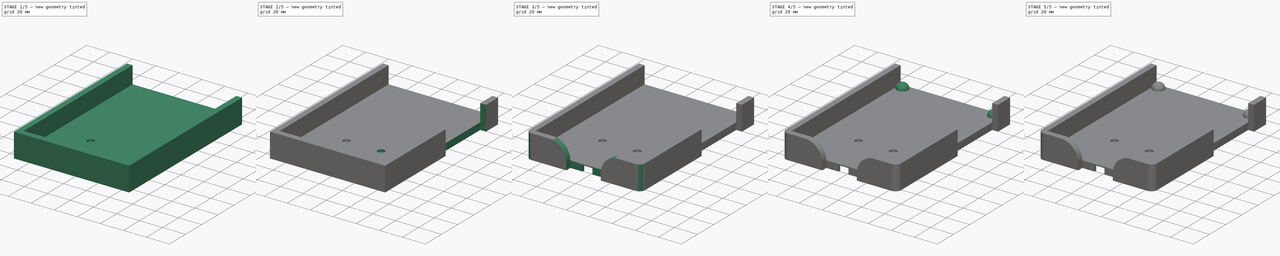
[diagram: build sequence overview — one tinted view per stage of 5, left to right]
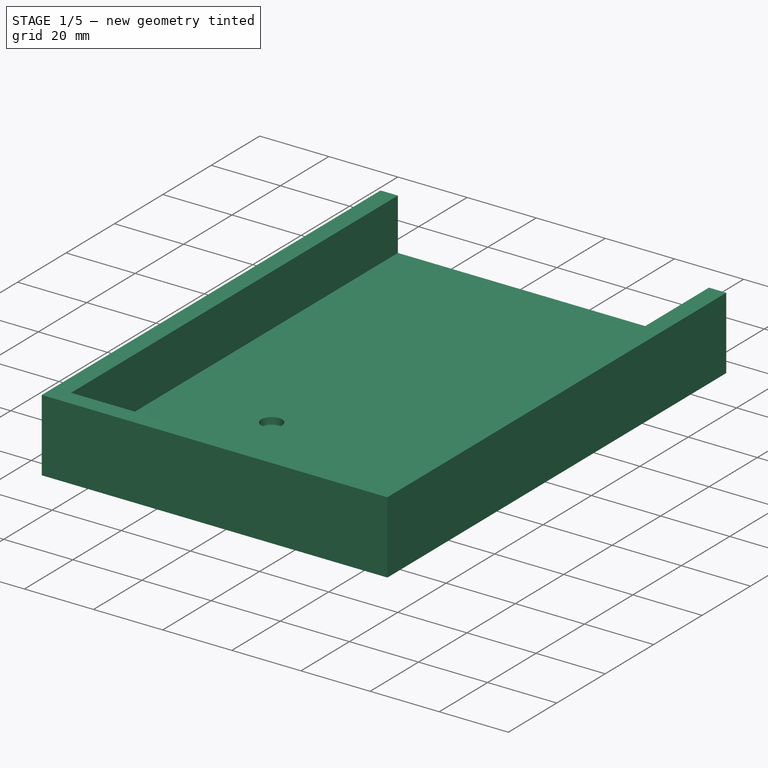
[diagram: stage 1 of 5 — iso view after this stage's code; geometry added in this stage tinted green]
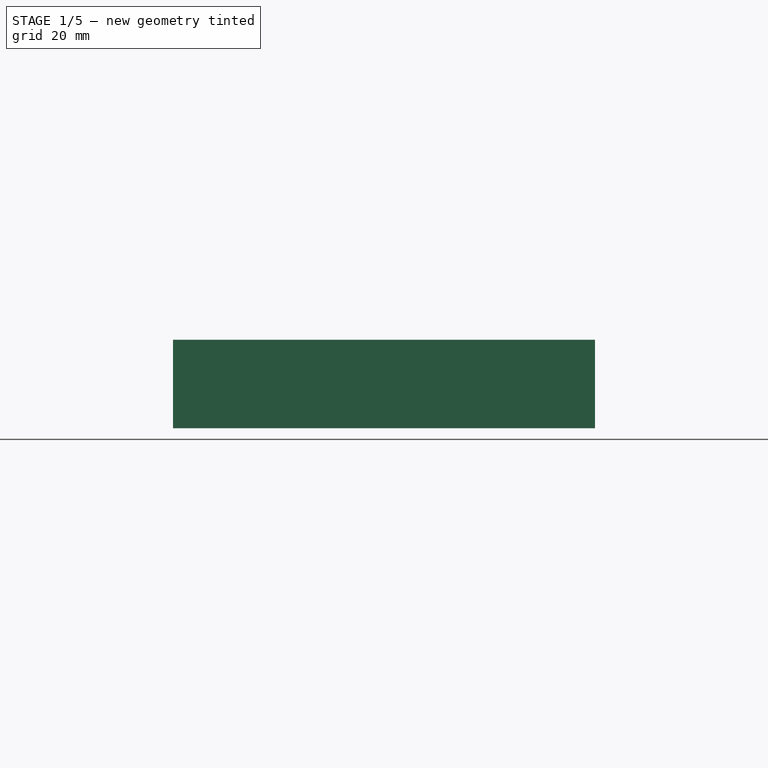
[diagram: stage 1 of 5 — front view after this stage's code; geometry added in this stage tinted green]
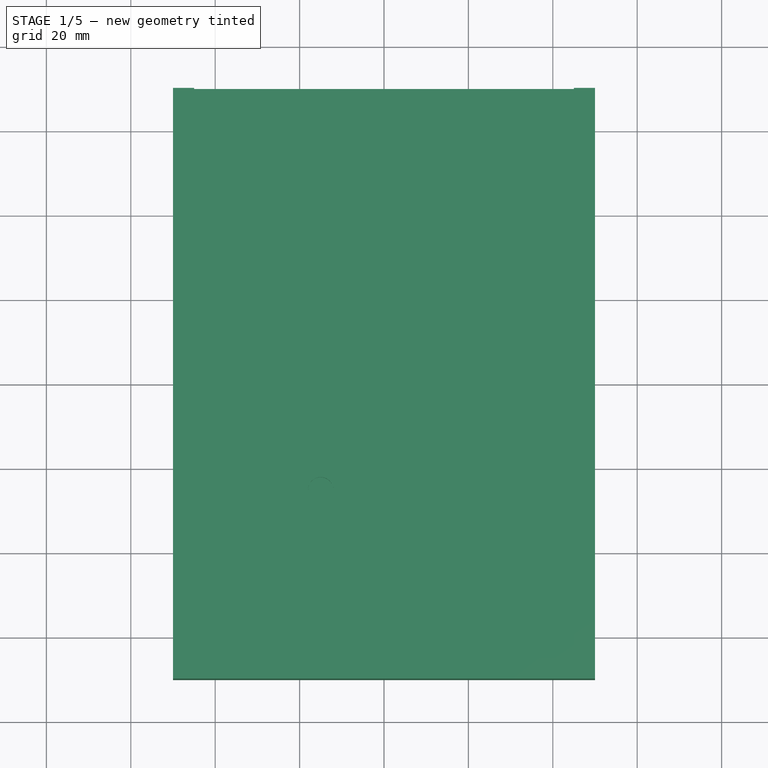
[diagram: stage 1 of 5 — top view after this stage's code; geometry added in this stage tinted green]
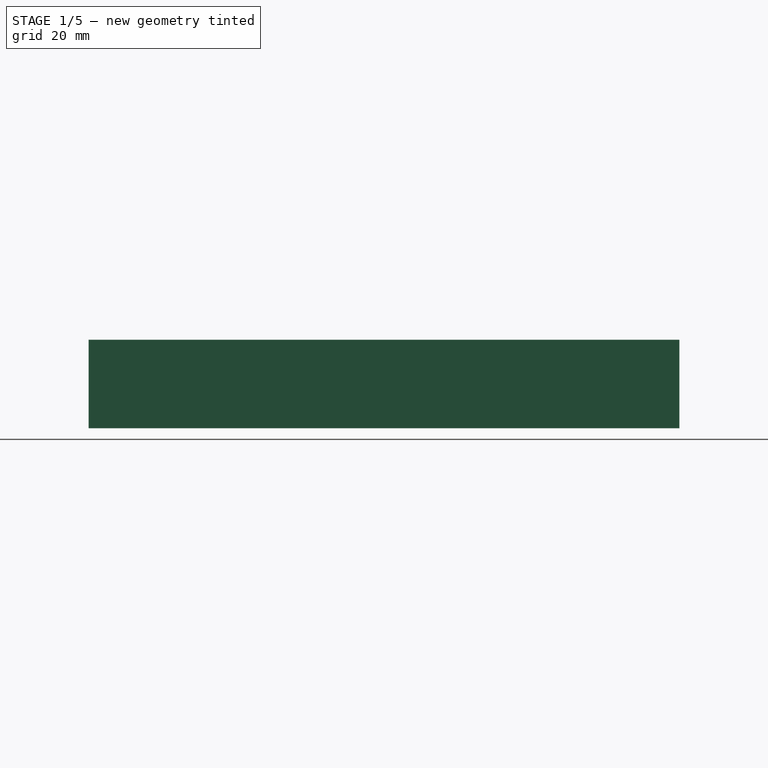
[diagram: stage 1 of 5 — right view after this stage's code; geometry added in this stage tinted green]
FCSTD DOCUMENT  (FreeCAD 0.14R3702 (Git))
Label: Holder_v3
License: CC-BY 3.0
LicenseURL: http://creativecommons.org/licenses/by/3.0/
objects: Sketcher::SketchObject×10, PartDesign::Pocket×6, PartDesign::Fillet×4, PartDesign::Pad×3, PartDesign::Mirrored×3
note: 35 computed .brp shape members not serialized (recipe doc carries the construction recipe); baked Part::Feature solids carry a one-line shape summary decoded from their .brp

FEATURE [Sketcher::SketchObject] Sketch
  sketch-geometry (4):
    g0: LineSegment StartX=-50 StartY=70 StartZ=0 EndX=50 EndY=70 EndZ=0
    g1: LineSegment StartX=50 StartY=70 StartZ=0 EndX=50 EndY=-70 EndZ=0
    g2: LineSegment StartX=50 StartY=-70 StartZ=0 EndX=-50 EndY=-70 EndZ=0
    g3: LineSegment StartX=-50 StartY=-70 StartZ=0 EndX=-50 EndY=70 EndZ=0
  constraints (11):
    c: Coincident(g0,g1)
    c: Coincident(g1,g2)
    c: Coincident(g2,g3)
    c: Coincident(g3,g0)
    c: Horizontal(g0)
    c: Horizontal(g2)
    c: Vertical(g1)
    c: Vertical(g3)
    c: DistanceX(g2) = -100
    c: DistanceY(g1) = -140
    c: Symmetric(g2,g0,g-1)
FEATURE [PartDesign::Pad] Pad
  Length = 21
  Length2 = 26.5
  Sketch = -> Sketch
  Type = 0
FEATURE [Sketcher::SketchObject] Sketch001
  ExternalGeometry = -> [Pad]
  Placement = pos=(0,0,21) rot=(0,0,1;0rad)
  Support = -> Pad [Face6]
  sketch-geometry (4):
    g0: LineSegment StartX=-45 StartY=70 StartZ=0 EndX=45 EndY=70 EndZ=0
    g1: LineSegment StartX=45 StartY=70 StartZ=0 EndX=45 EndY=-65 EndZ=0
    g2: LineSegment StartX=45 StartY=-65 StartZ=0 EndX=-45 EndY=-65 EndZ=0
    g3: LineSegment StartX=-45 StartY=-65 StartZ=0 EndX=-45 EndY=70 EndZ=0
  constraints (12):
    c: Coincident(g0,g1)
    c: Coincident(g1,g2)
    c: Coincident(g2,g3)
    c: Coincident(g3,g0)
    c: Horizontal(g0)
    c: Horizontal(g2)
    c: Vertical(g1)
    c: Vertical(g3)
    c: DistanceY(g0,g-3) = 0
    c: DistanceX(g0,g-3) = 5
    c: DistanceX(g-3,g0) = 5
    c: DistanceY(g1) = -135
FEATURE [PartDesign::Pocket] Pocket
  Length = 15
  Sketch = -> Sketch001
  Type = 0
FEATURE [Sketcher::SketchObject] Sketch002
  Placement = pos=(0,0,0) rot=(1,0,0;3.14159rad)
  Support = -> Pocket [Face2]
FEATURE [Sketcher::SketchObject] Sketch003
  Placement = pos=(0,0,6) rot=(0,0,1;0rad)
  Support = -> Pocket [Face6]
  sketch-geometry (1):
    g0: Circle CenterX=-15 CenterY=-25 CenterZ=0 NormalX=0 NormalY=0 NormalZ=1 Radius=3
  constraints (2):
    c: Radius(g0) = 3
    c: DistanceX(g-2,g0) = -15
FEATURE [PartDesign::Pocket] Pocket001
  Length = 2
  Sketch = -> Sketch003
  Type = 0
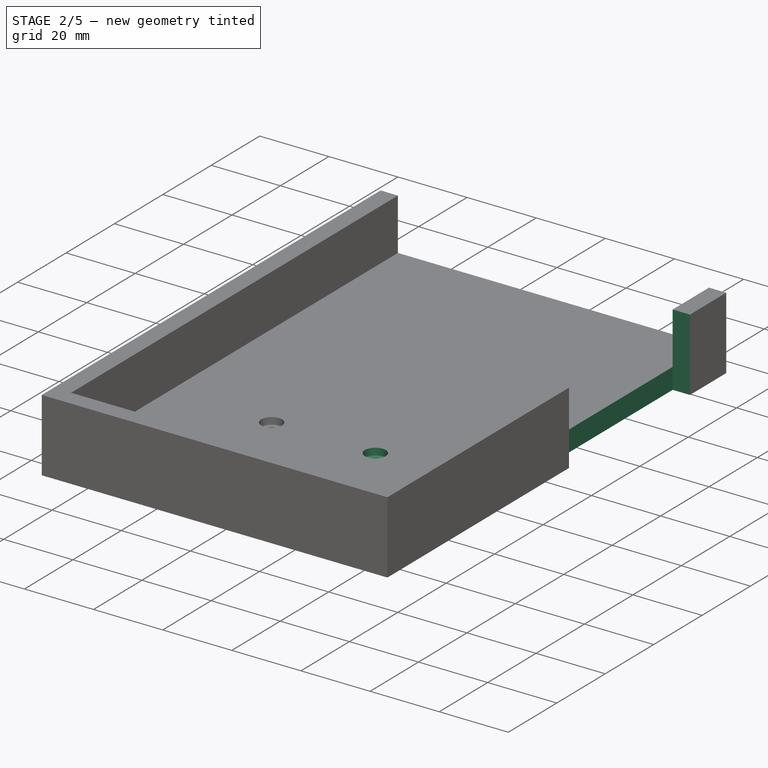
[diagram: stage 2 of 5 — iso view after this stage's code; geometry added in this stage tinted green]
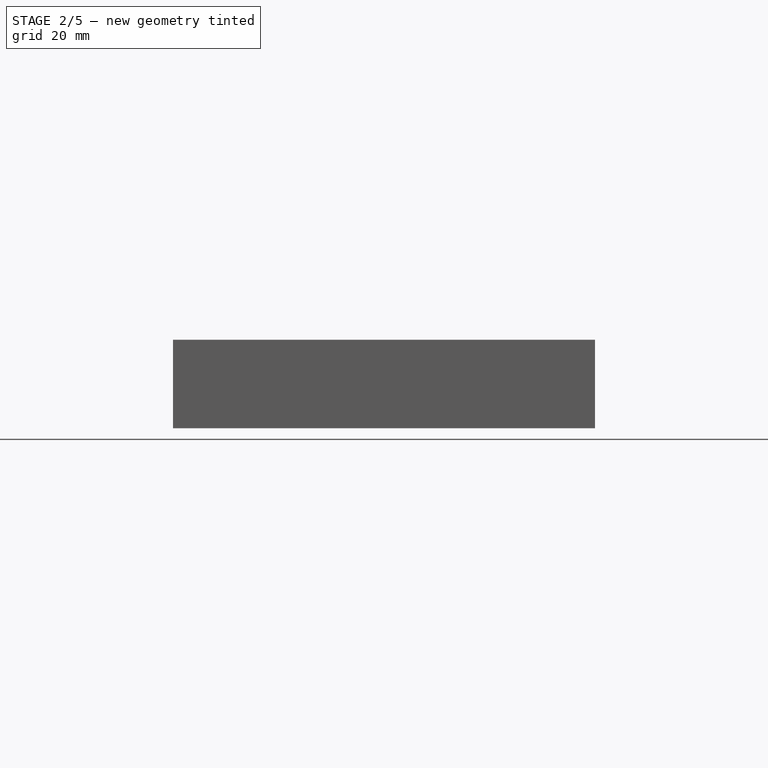
[diagram: stage 2 of 5 — front view after this stage's code; geometry added in this stage tinted green]
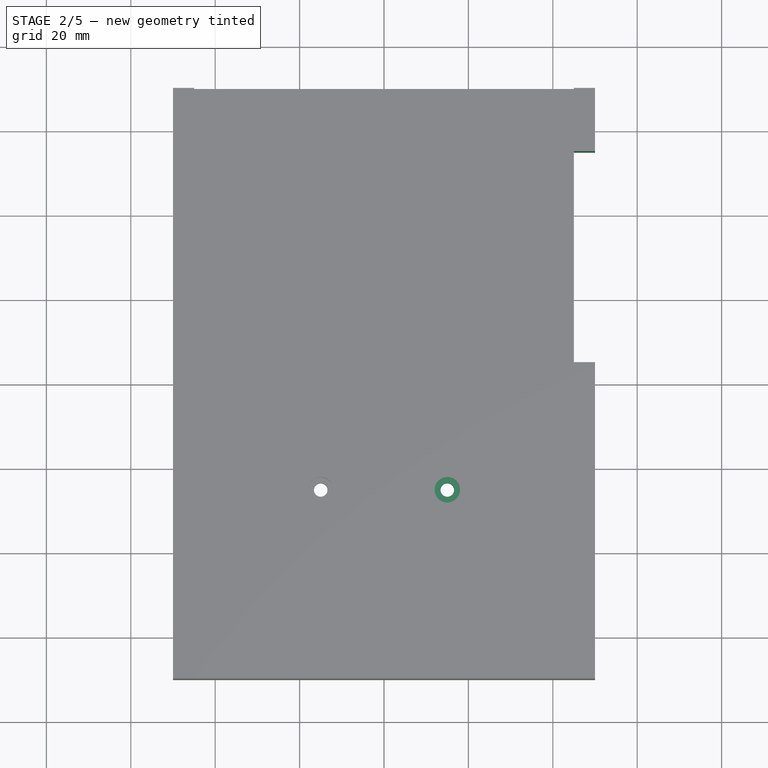
[diagram: stage 2 of 5 — top view after this stage's code; geometry added in this stage tinted green]
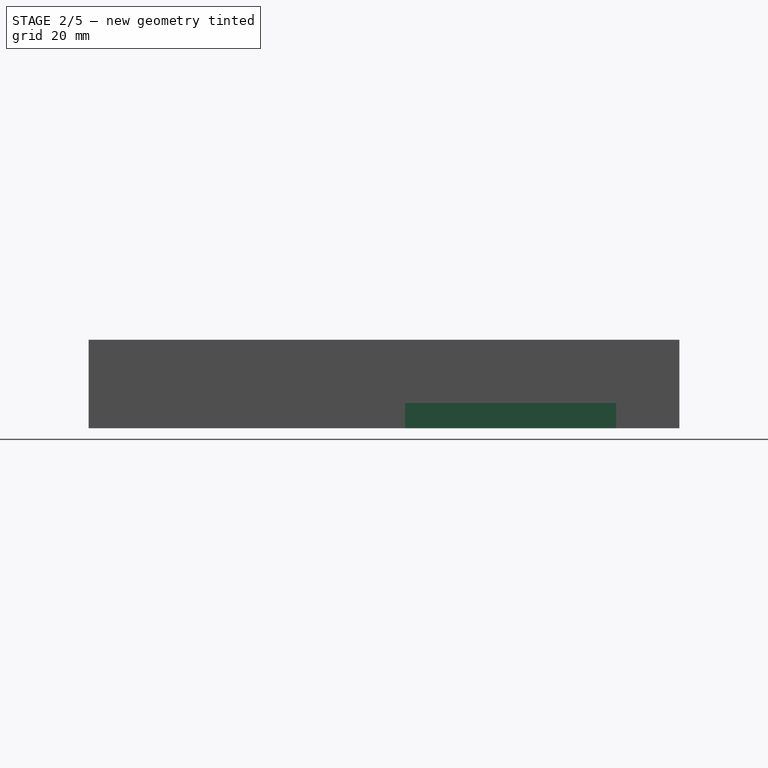
[diagram: stage 2 of 5 — right view after this stage's code; geometry added in this stage tinted green]
FEATURE [Sketcher::SketchObject] Sketch004
  Placement = pos=(0,0,4) rot=(0,0,1;0rad)
  Support = -> Pocket001 [Face12]
  sketch-geometry (1):
    g0: Circle CenterX=-15 CenterY=-25 CenterZ=0 NormalX=0 NormalY=0 NormalZ=1 Radius=1.6
  constraints (1):
    c: Radius(g0) = 1.6
FEATURE [PartDesign::Pocket] Pocket002
  Length = 5
  Sketch = -> Sketch004
  Type = 1
FEATURE [PartDesign::Mirrored] Mirrored
  MirrorPlane = -> Sketch004 [V_Axis]
  Originals = -> [Pocket002,Pocket001]
FEATURE [Sketcher::SketchObject] Sketch005
  ExternalGeometry = -> [Mirrored]
  Placement = pos=(0,0,21) rot=(0,0,1;0rad)
  Support = -> Mirrored [Face4]
  sketch-geometry (4):
    g0: LineSegment StartX=45 StartY=55 StartZ=0 EndX=50 EndY=55 EndZ=0
    g1: LineSegment StartX=50 StartY=55 StartZ=0 EndX=50 EndY=5 EndZ=0
    g2: LineSegment StartX=50 StartY=5 StartZ=0 EndX=45 EndY=5 EndZ=0
    g3: LineSegment StartX=45 StartY=5 StartZ=0 EndX=45 EndY=55 EndZ=0
  constraints (12):
    c: Coincident(g0,g1)
    c: Coincident(g1,g2)
    c: Coincident(g2,g3)
    c: Coincident(g3,g0)
    c: Horizontal(g0)
    c: Horizontal(g2)
    c: Vertical(g1)
    c: Vertical(g3)
    c: DistanceX(g2,g-3) = 0
    c: DistanceX(g-4,g1) = 0
    c: DistanceY(g-3,g2) = 70
    c: DistanceY(g-3,g0) = 120
FEATURE [PartDesign::Pocket] Pocket003
  Length = 15
  Sketch = -> Sketch005
  Type = 1
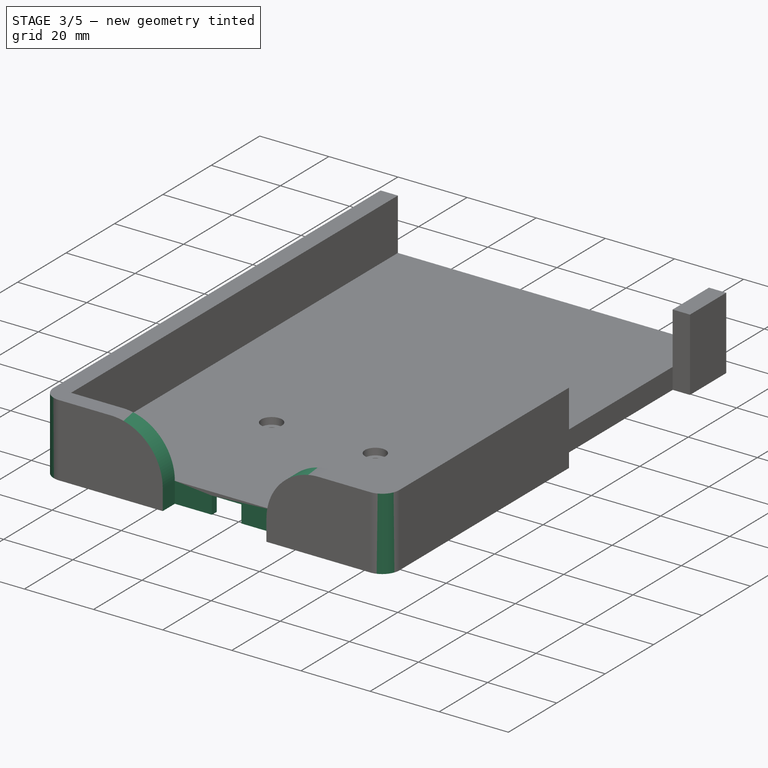
[diagram: stage 3 of 5 — iso view after this stage's code; geometry added in this stage tinted green]
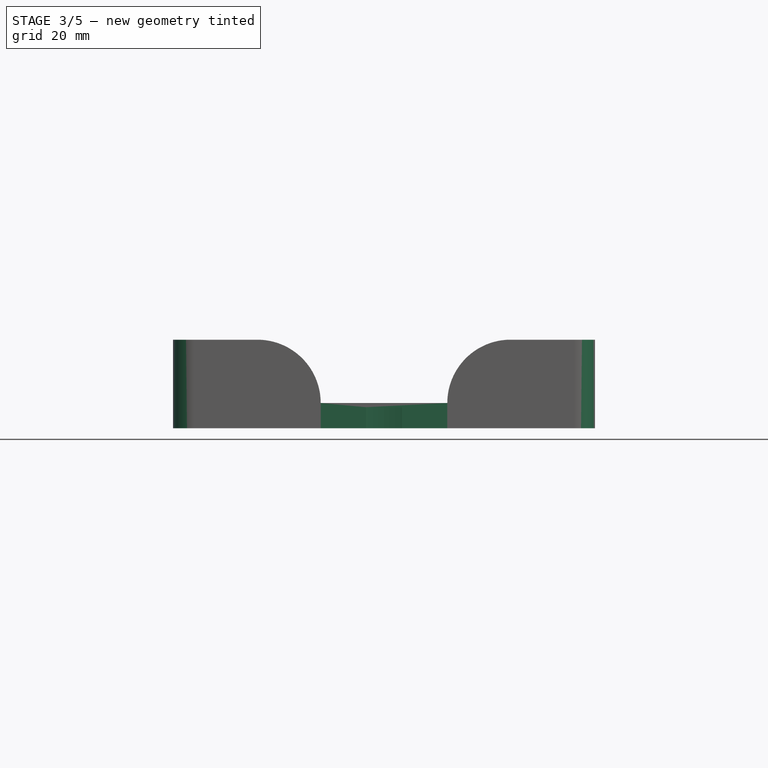
[diagram: stage 3 of 5 — front view after this stage's code; geometry added in this stage tinted green]
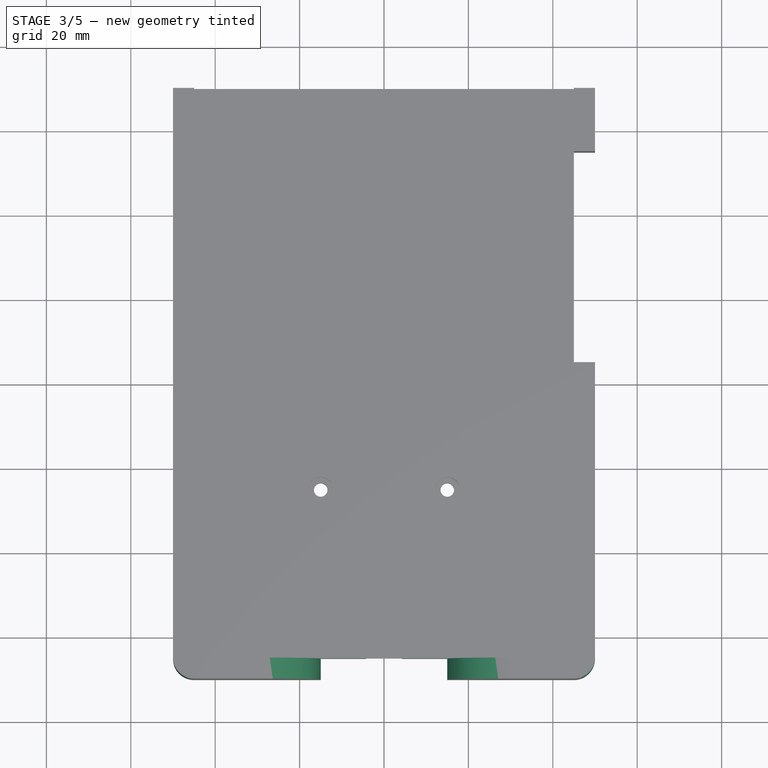
[diagram: stage 3 of 5 — top view after this stage's code; geometry added in this stage tinted green]
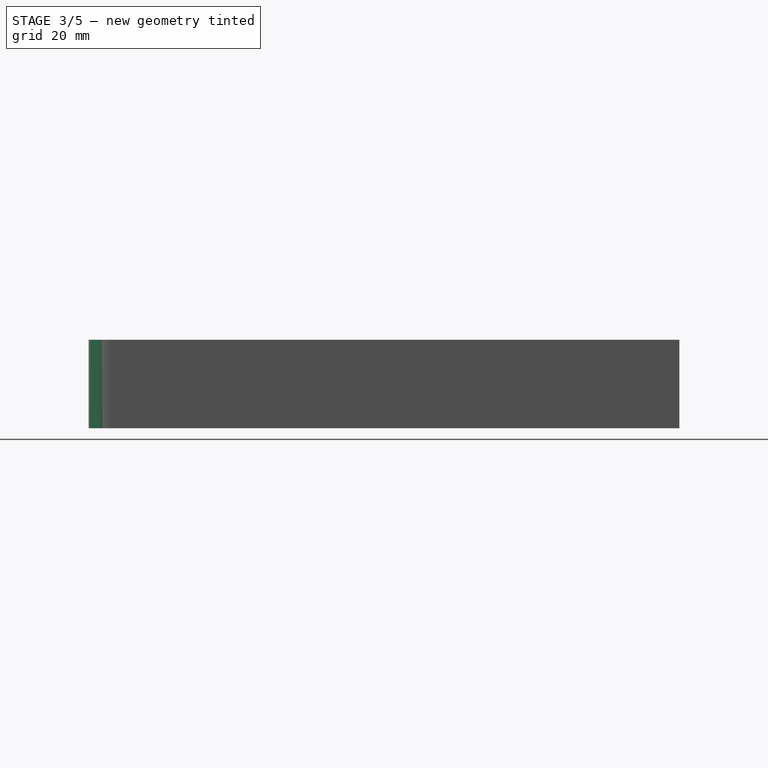
[diagram: stage 3 of 5 — right view after this stage's code; geometry added in this stage tinted green]
FEATURE [Sketcher::SketchObject] Sketch006
  Placement = pos=(0,0,21) rot=(0,0,1;0rad)
  Support = -> Pocket003 [Face8]
  sketch-geometry (4):
    g0: LineSegment StartX=-15 StartY=-65 StartZ=0 EndX=15 EndY=-65 EndZ=0
    g1: LineSegment StartX=15 StartY=-65 StartZ=0 EndX=15 EndY=-70 EndZ=0
    g2: LineSegment StartX=15 StartY=-70 StartZ=0 EndX=-15 EndY=-70 EndZ=0
    g3: LineSegment StartX=-15 StartY=-70 StartZ=0 EndX=-15 EndY=-65 EndZ=0
  constraints (8):
    c: Coincident(g0,g1)
    c: Coincident(g1,g2)
    c: Coincident(g2,g3)
    c: Coincident(g3,g0)
    c: Horizontal(g0)
    c: Horizontal(g2)
    c: Vertical(g1)
    c: Vertical(g3)
FEATURE [PartDesign::Pocket] Pocket004
  Length = 5
  Sketch = -> Sketch006
  Type = 1
FEATURE [PartDesign::Fillet] Fillet
  Base = -> Pocket004 [Edge42,Edge48]
  Radius = 5
FEATURE [Sketcher::SketchObject] Sketch007
  ExternalGeometry = -> [Fillet]
  Placement = pos=(0,0,0) rot=(1,0,0;3.14159rad)
  Support = -> Fillet [Face1]
  sketch-geometry (12):
    g0: LineSegment StartX=9 StartY=30 StartZ=0 EndX=9 EndY=21.3926 EndZ=0
    g1: LineSegment StartX=-9 StartY=21.3926 StartZ=0 EndX=-9 EndY=30 EndZ=0
    g2: ArcOfCircle CenterX=0 CenterY=-3 CenterZ=0 NormalX=0 NormalY=0 NormalZ=1 Radius=26 StartAngle=1.92426 EndAngle=7.50051
    g3: LineSegment StartX=-4.26122 StartY=65 StartZ=0 EndX=4.26122 EndY=65 EndZ=0
    g4: LineSegment StartX=4.26122 StartY=65 StartZ=0 EndX=4.26122 EndY=63 EndZ=0
    g5: LineSegment StartX=-4.26122 StartY=63 StartZ=0 EndX=-4.26122 EndY=65 EndZ=0
    g6: LineSegment StartX=-4.26122 StartY=63 StartZ=0 EndX=-17 EndY=63 EndZ=0
    g7: LineSegment StartX=-17 StartY=63 StartZ=0 EndX=-17 EndY=30 EndZ=0
    g8: LineSegment StartX=-17 StartY=30 StartZ=0 EndX=-9 EndY=30 EndZ=0
    g9: LineSegment StartX=9 StartY=30 StartZ=0 EndX=17 EndY=30 EndZ=0
    g10: LineSegment StartX=17 StartY=30 StartZ=0 EndX=17 EndY=63 EndZ=0
    g11: LineSegment StartX=17 StartY=63 StartZ=0 EndX=4.26122 EndY=63 EndZ=0
  constraints (35):
    c: Vertical(g0)
    c: Vertical(g1)
    c: Coincident(g2,g0)
    c: DistanceY(g2,g-3) = 68
    c: Radius(g2) = 26
    c: PointOnObject(g2,g-2)
    c: DistanceX(g1,g0) = 18
    c: Coincident(g2,g1)
    c: Coincident(g3,g4)
    c: Coincident(g5,g3)
    c: Horizontal(g3)
    c: Vertical(g4)
    c: Vertical(g5)
    c: Symmetric(g5,g4,g-2)
    c: DistanceY(g3,g-3) = 0
    c: DistanceY(g3,g4) = -2
    c: Equal(g4,g5)
    c: Coincident(g5,g6)
    c: Horizontal(g6)
    c: Coincident(g6,g7)
    c: Vertical(g7)
    c: Coincident(g7,g8)
    c: Horizontal(g8)
    c: Coincident(g0,g9)
    c: Horizontal(g9)
    c: Coincident(g9,g10)
    c: Vertical(g10)
    c: Coincident(g10,g11)
    c: Coincident(g11,g4)
    c: Horizontal(g11)
    c: Equal(g7,g10)
    c: DistanceY(g10,g9) = -33
    c: Equal(g11,g6)
    c: DistanceX(g7,g9) = 34
    c: Coincident(g1,g8)
FEATURE [PartDesign::Pocket] Pocket005
  Length = 5
  Sketch = -> Sketch007
  Type = 0
FEATURE [PartDesign::Fillet] Fillet001
  Base = -> Pocket005 [Edge63,Edge34]
  Radius = 15
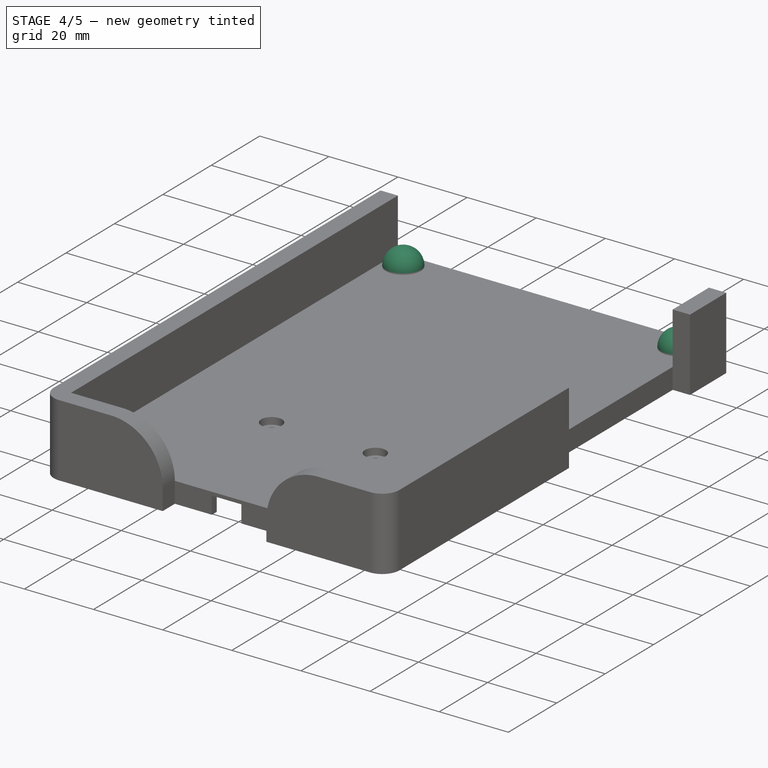
[diagram: stage 4 of 5 — iso view after this stage's code; geometry added in this stage tinted green]
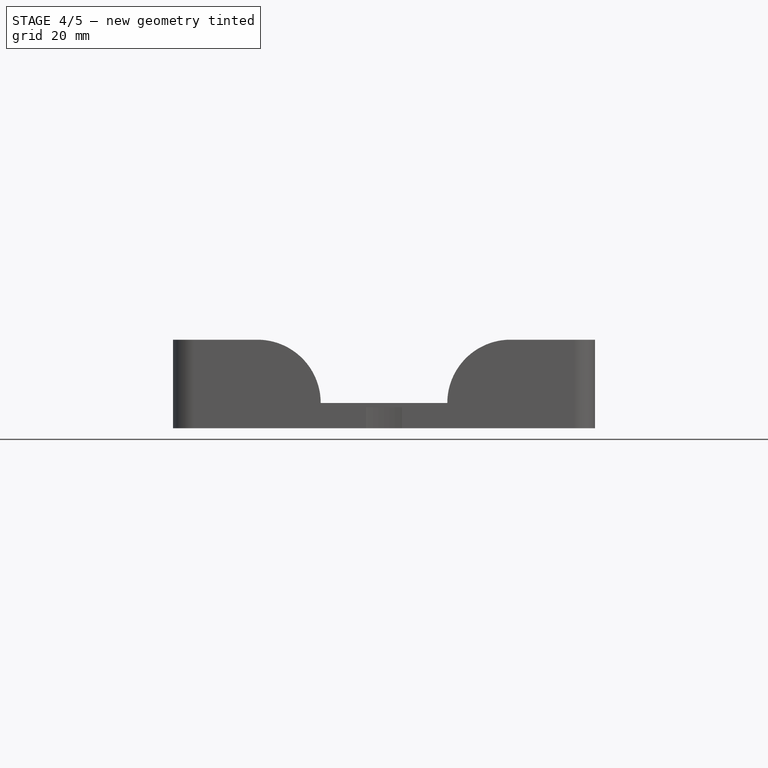
[diagram: stage 4 of 5 — front view after this stage's code; geometry added in this stage tinted green]
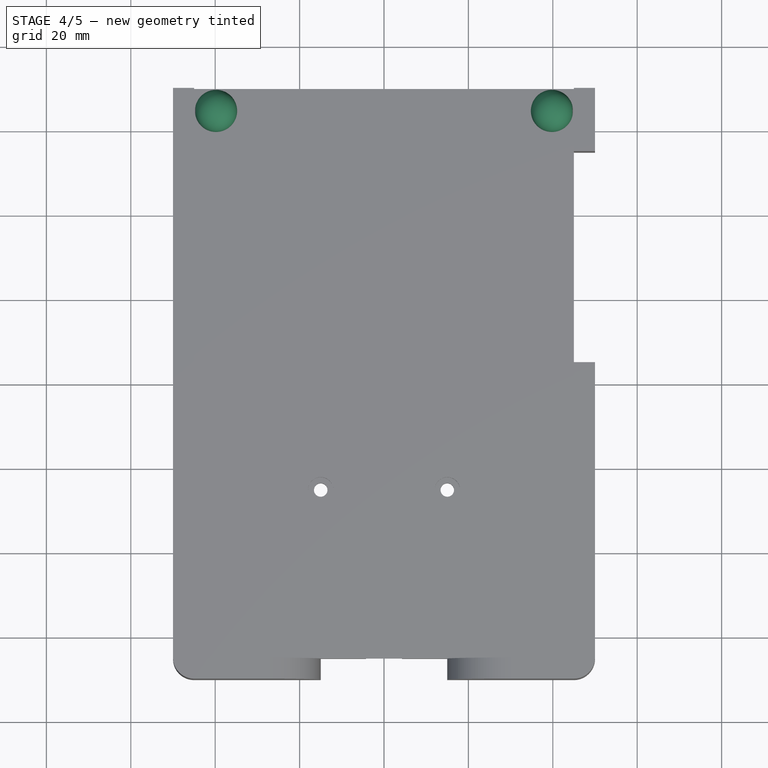
[diagram: stage 4 of 5 — top view after this stage's code; geometry added in this stage tinted green]
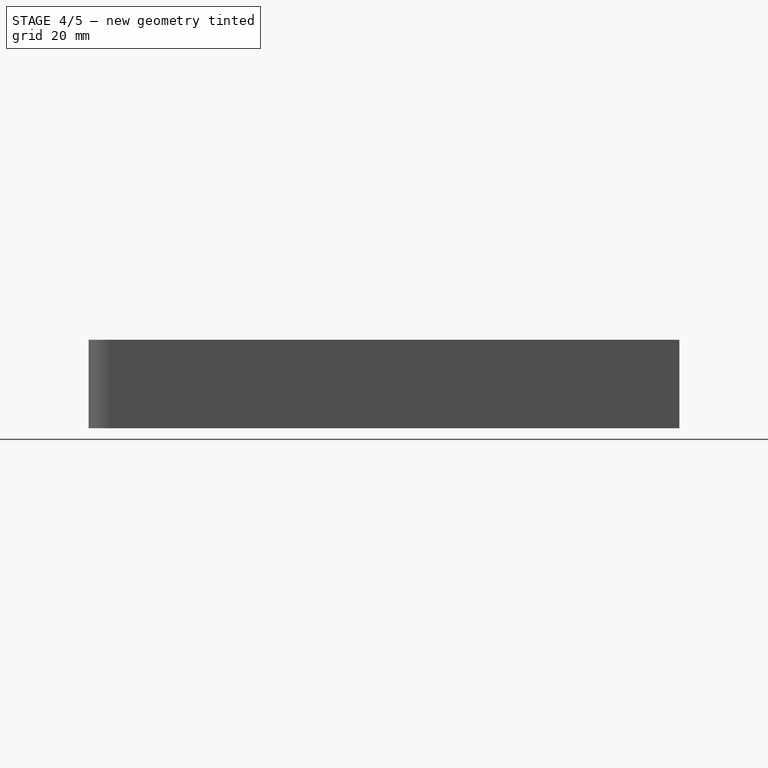
[diagram: stage 4 of 5 — right view after this stage's code; geometry added in this stage tinted green]
FEATURE [Sketcher::SketchObject] Sketch008
  ExternalGeometry = -> [Fillet001]
  Placement = pos=(0,0,6) rot=(0,0,1;0rad)
  Support = -> Fillet001 [Face34]
  sketch-geometry (1):
    g0: Circle CenterX=-39.8 CenterY=64.8 CenterZ=0 NormalX=0 NormalY=0 NormalZ=1 Radius=5
  constraints (3):
    c: Radius(g0) = 5
    c: DistanceX(g-3,g0) = 5.2
    c: DistanceY(g-3,g0) = -5.2
FEATURE [PartDesign::Pad] Pad001
  Length = 5
  Length2 = 26.5
  Sketch = -> Sketch008
  Type = 0
FEATURE [PartDesign::Mirrored] Mirrored001
  MirrorPlane = -> Sketch008 [V_Axis]
  Originals = -> [Pad001]
FEATURE [PartDesign::Fillet] Fillet002
  Base = -> Mirrored001 [Edge1,Edge48]
  Radius = 4.9
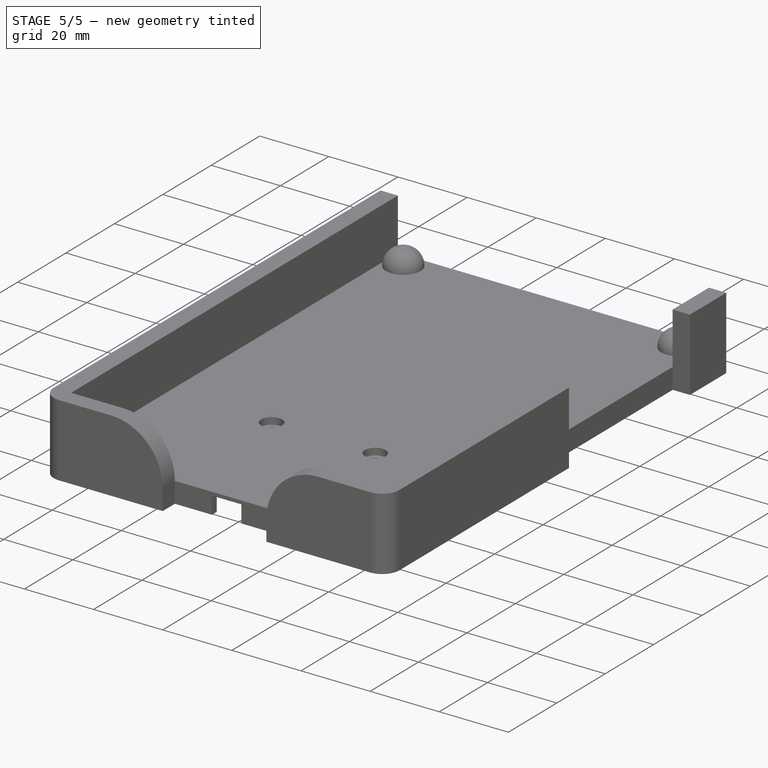
[diagram: stage 5 of 5 — iso view after this stage's code; geometry added in this stage tinted green]
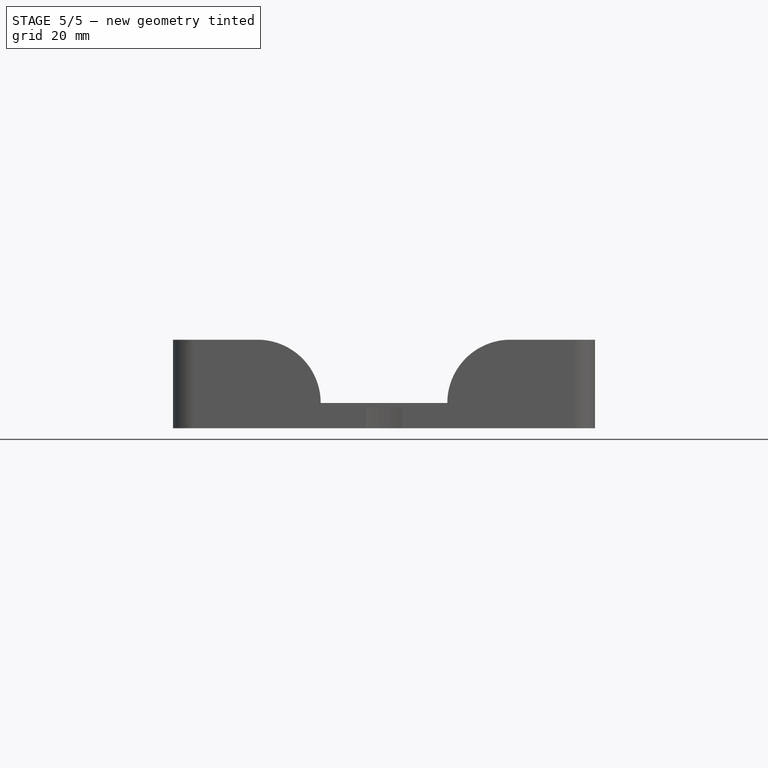
[diagram: stage 5 of 5 — front view after this stage's code; geometry added in this stage tinted green]
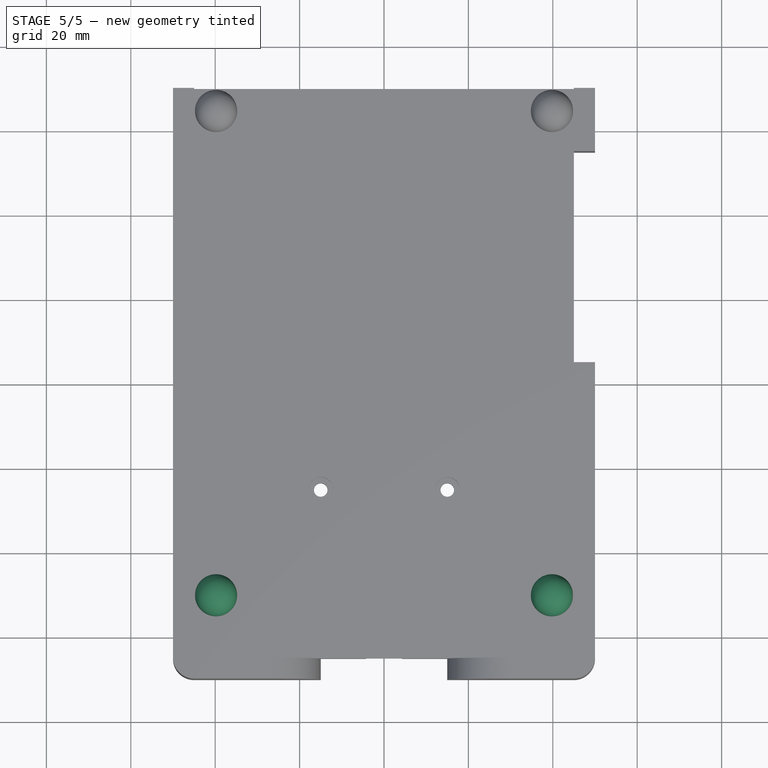
[diagram: stage 5 of 5 — top view after this stage's code; geometry added in this stage tinted green]
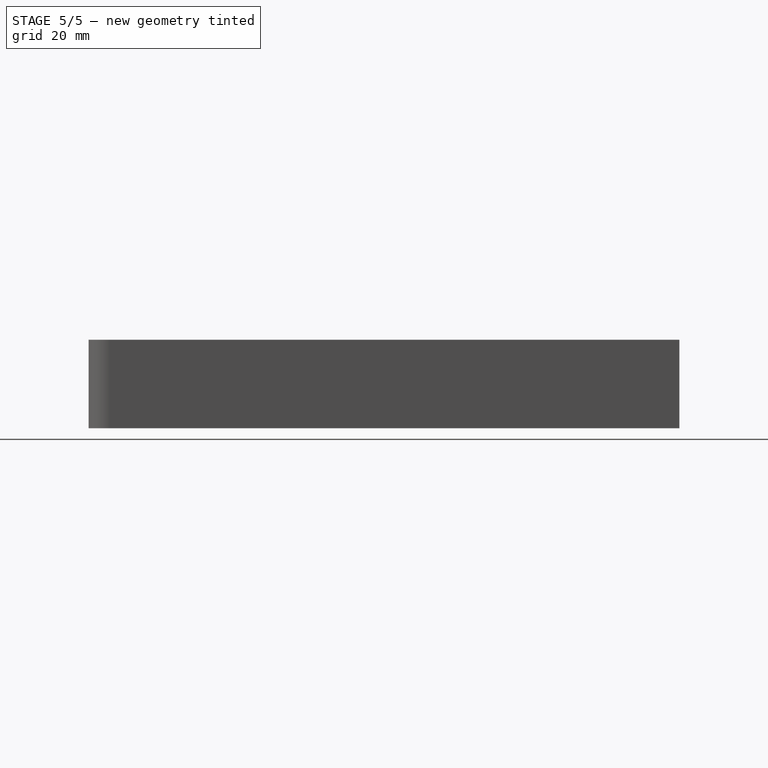
[diagram: stage 5 of 5 — right view after this stage's code; geometry added in this stage tinted green]
FEATURE [Sketcher::SketchObject] Sketch009
  ExternalGeometry = -> [Fillet002]
  Placement = pos=(0,0,6) rot=(0,0,1;0rad)
  Support = -> Fillet002 [Face4]
  sketch-geometry (1):
    g0: Circle CenterX=-39.8 CenterY=-50 CenterZ=0 NormalX=0 NormalY=0 NormalZ=1 Radius=5
  constraints (3):
    c: Radius(g0) = 5
    c: DistanceX(g-3,g0) = 5.2
    c: DistanceY(g0,g-3) = -15
FEATURE [PartDesign::Pad] Pad002
  Length = 5
  Length2 = 26.5
  Sketch = -> Sketch009
  Type = 0
FEATURE [PartDesign::Mirrored] Mirrored002
  MirrorPlane = -> Sketch009 [V_Axis]
  Originals = -> [Pad002]
FEATURE [PartDesign::Fillet] Fillet003
  Base = -> Mirrored002 [Edge1,Edge54]
  Radius = 4.9
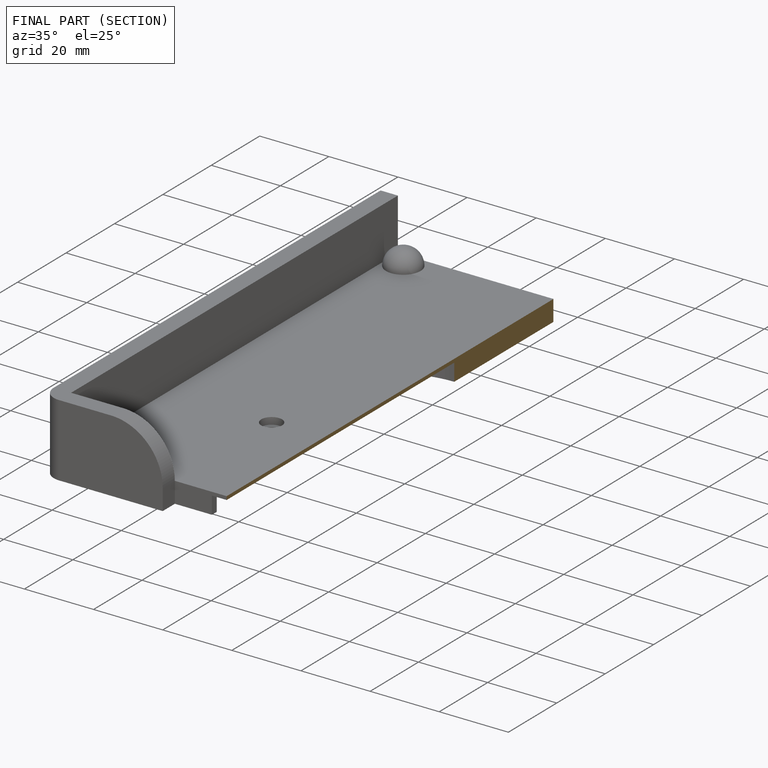
[diagram: finished part — half-section view (interior)]
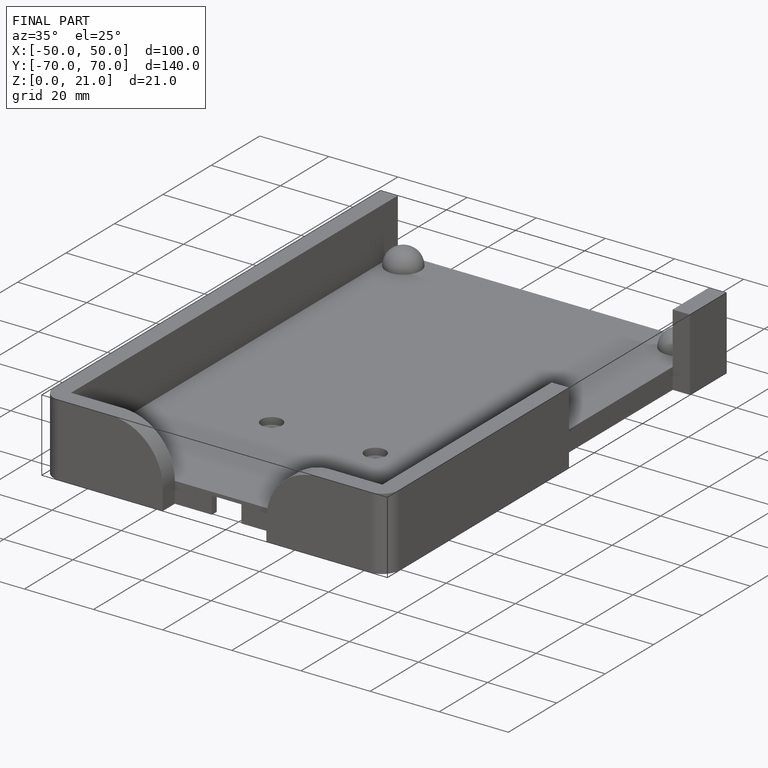
[diagram: finished part — iso view with bounding-box wireframe]
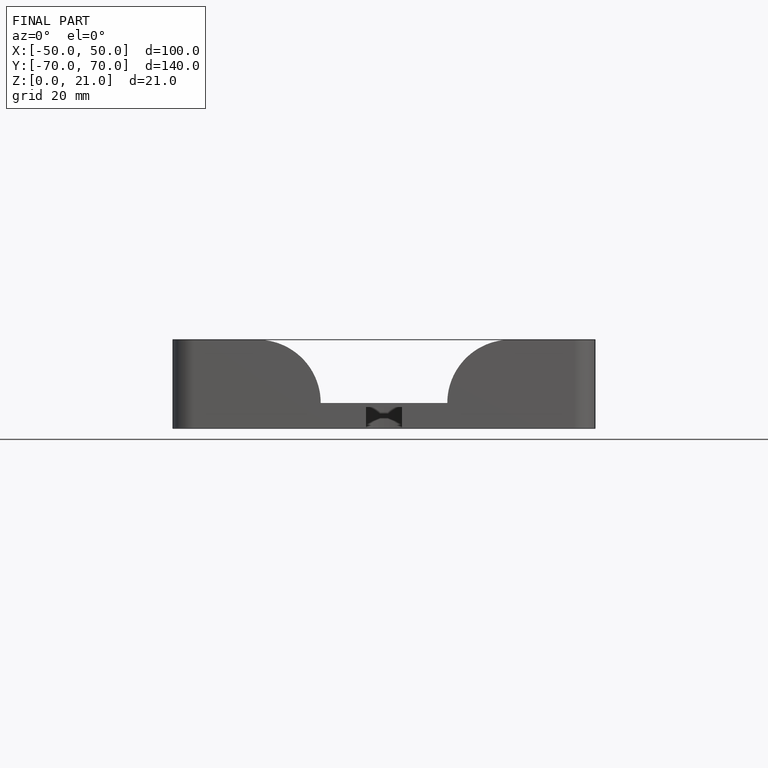
[diagram: finished part — front view with bounding-box wireframe]
